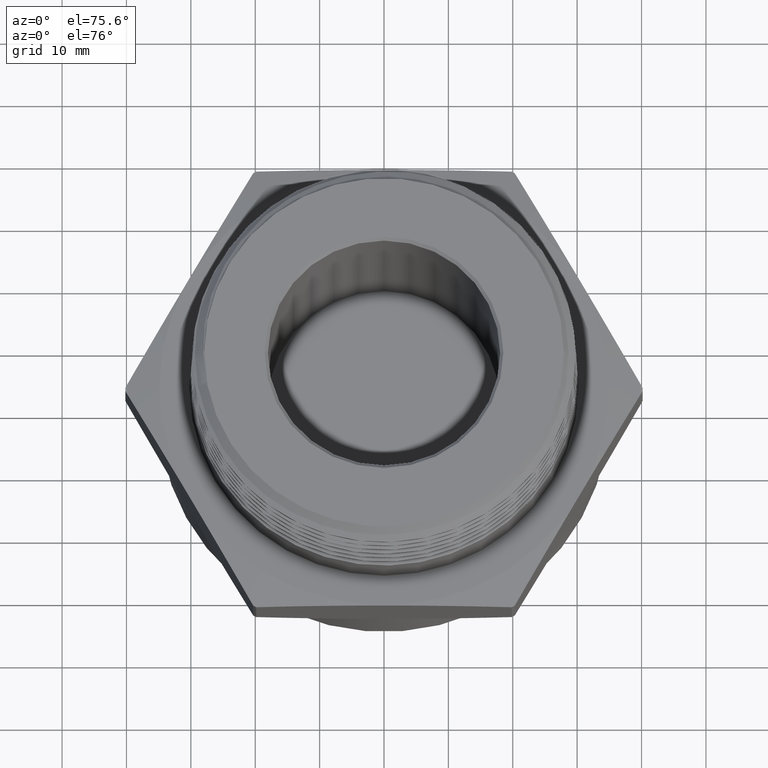
[diagram: clean part render]
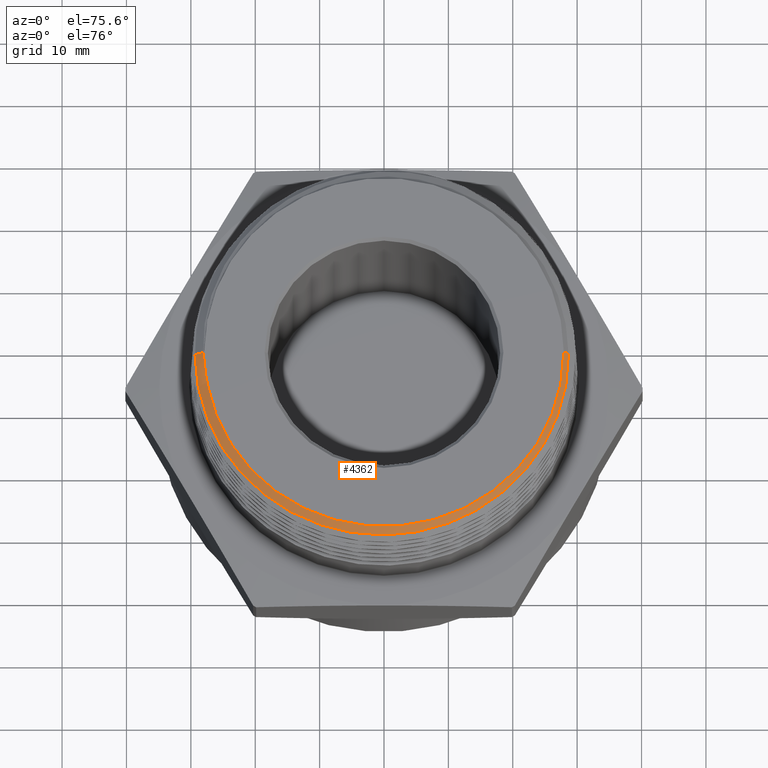
[diagram: same view with one face highlighted and labeled with its STEP entity id]
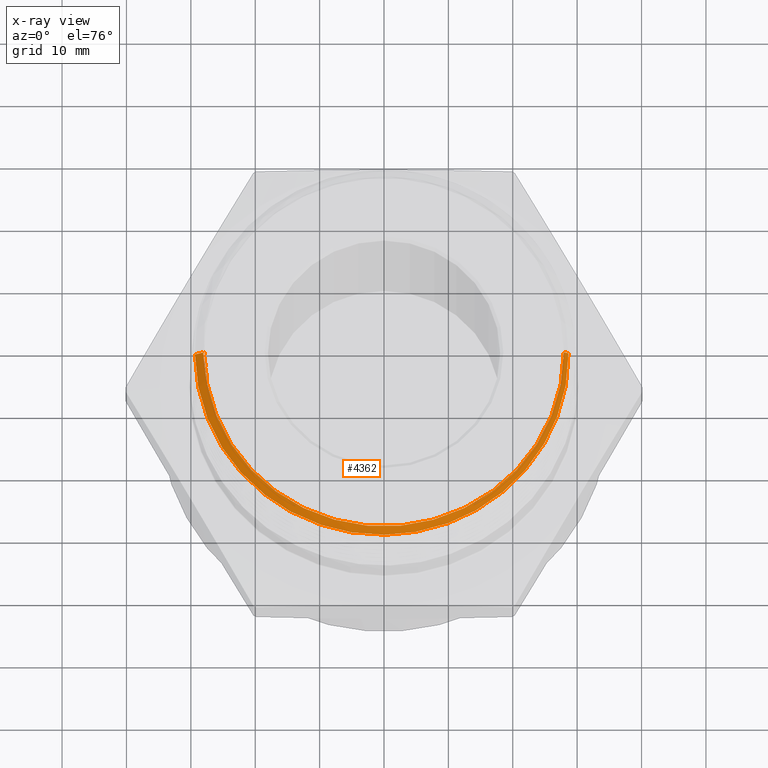
[diagram: x-ray of the same camera — body ghosted, the highlighted face saturated]
A machine part, auxiliary view. The second image highlights one B-rep face of the part: STEP entity #4362.
The next image is the same camera in x-ray: the body ghosted, the highlighted face saturated — about 0% of this face is hidden behind the body in this view.
In plain terms, the highlighted conical surface has half-angle 45 deg.
Its self-contained STEP definition (entity closure, byte-faithful):
#70 = B_SPLINE_CURVE_WITH_KNOTS ( 'NONE', 3,
 ( #3223, #3163, #3225, #3226, #3227, #3228 ),
 .UNSPECIFIED., .F., .F.,
 ( 4, 2, 4 ),
 ( 0.0000000000000000000, 0.002267236822697213500, 0.004534473645394426900 ),
 .UNSPECIFIED. ) ;
#73 = B_SPLINE_CURVE_WITH_KNOTS ( 'NONE', 3,
 ( #3229, #3230, #3235, #3236, #3237, #3238 ),
 .UNSPECIFIED., .F., .F.,
 ( 4, 2, 4 ),
 ( 0.002414601907730428700, 0.004679204686523712200, 0.006943807465316994800 ),
 .UNSPECIFIED. ) ;
#109 = FACE_OUTER_BOUND ( 'NONE', #1946, .T. ) ;
#114 = CONICAL_SURFACE ( 'NONE', #159, 1.193381189221745000, 0.7853981633974533900 ) ;
#159 = AXIS2_PLACEMENT_3D ( 'NONE', #7833, #7834, #7832 ) ;
#596 = CARTESIAN_POINT ( 'NONE',  ( -1.099700000000000100, 0.0000000000000000000, 1.200000000000000000 ) ) ;
#597 = CARTESIAN_POINT ( 'NONE',  ( 1.099700000000000100, 1.381438622983947700E-016, 1.200000000000000000 ) ) ;
#598 = CARTESIAN_POINT ( 'NONE',  ( -1.086377111140544700, -0.1773428476099616900, 1.198943118028106500 ) ) ;
#600 = CARTESIAN_POINT ( 'NONE',  ( 1.128048924917789200, 1.070967773220343500E-015, 1.171651075082210900 ) ) ;
#602 = CARTESIAN_POINT ( 'NONE',  ( -1.100815782494587200, -4.758545883243128000E-013, 1.198884217505412900 ) ) ;
#604 = CARTESIAN_POINT ( 'NONE',  ( -1.105975229220446800, 2.170469800391787400E-015, 1.193724770779554000 ) ) ;
#605 = CARTESIAN_POINT ( 'NONE',  ( -1.156022545099350200, -7.616741192391178700E-013, 1.143677454900650500 ) ) ;
#1107 = EDGE_CURVE ( 'NONE', #1983, #1989, #3294, .T. ) ;
#1109 = EDGE_CURVE ( 'NONE', #1985, #1991, #70, .T. ) ;
#1110 = EDGE_CURVE ( 'NONE', #1984, #1983, #3297, .T. ) ;
#1111 = EDGE_CURVE ( 'NONE', #1989, #1985, #73, .T. ) ;
#1112 = EDGE_CURVE ( 'NONE', #1991, #1992, #3292, .T. ) ;
#1649 = CARTESIAN_POINT ( 'NONE',  ( -1.193381189221745000, 0.0000000000000000000, 1.106318810778256200 ) ) ;
#1946 = EDGE_LOOP ( 'NONE', ( #2121, #2122, #2123, #2124, #2125, #2126, #2127 ) ) ;
#1983 = VERTEX_POINT ( 'NONE', #596 ) ;
#1984 = VERTEX_POINT ( 'NONE', #597 ) ;
#1985 = VERTEX_POINT ( 'NONE', #598 ) ;
#1987 = VERTEX_POINT ( 'NONE', #600 ) ;
#1989 = VERTEX_POINT ( 'NONE', #602 ) ;
#1991 = VERTEX_POINT ( 'NONE', #604 ) ;
#1992 = VERTEX_POINT ( 'NONE', #605 ) ;
#2121 = ORIENTED_EDGE ( 'NONE', *, *, #4227, .F. ) ;
#2122 = ORIENTED_EDGE ( 'NONE', *, *, #1110, .T. ) ;
#2123 = ORIENTED_EDGE ( 'NONE', *, *, #1107, .T. ) ;
#2124 = ORIENTED_EDGE ( 'NONE', *, *, #1111, .T. ) ;
#2125 = ORIENTED_EDGE ( 'NONE', *, *, #1109, .T. ) ;
#2126 = ORIENTED_EDGE ( 'NONE', *, *, #1112, .T. ) ;
#2127 = ORIENTED_EDGE ( 'NONE', *, *, #4222, .T. ) ;
#3014 = LINE ( 'NONE', #4804, #3017 ) ;
#3017 = VECTOR ( 'NONE', #4876, 39.37007874015748100 ) ;
#3162 = DIRECTION ( 'NONE',  ( -0.7071067811865511300, 0.0000000000000000000, -0.7071067811865439100 ) ) ;
#3163 = CARTESIAN_POINT ( 'NONE',  ( -1.092044101637953800, -0.1480651475286378900, 1.198067086201881400 ) ) ;
#3223 = CARTESIAN_POINT ( 'NONE',  ( -1.086377111140544700, -0.1773428476099616900, 1.198943118028106500 ) ) ;
#3225 = CARTESIAN_POINT ( 'NONE',  ( -1.096505697157817100, -0.1186446536988642500, 1.197194913947073700 ) ) ;
#3226 = CARTESIAN_POINT ( 'NONE',  ( -1.103036798239352300, -0.05952028204619910100, 1.195458627261829700 ) ) ;
#3227 = CARTESIAN_POINT ( 'NONE',  ( -1.105107613503385900, -0.02974379452529727500, 1.194592386496614800 ) ) ;
#3228 = CARTESIAN_POINT ( 'NONE',  ( -1.105975229220446800, 2.170469800391787400E-015, 1.193724770779554000 ) ) ;
#3229 = CARTESIAN_POINT ( 'NONE',  ( -1.100815782494587200, -4.758545883243128000E-013, 1.198884217505412900 ) ) ;
#3230 = CARTESIAN_POINT ( 'NONE',  ( -1.100806205085750800, -0.02968471655012536900, 1.198893794914236000 ) ) ;
#3231 = CARTESIAN_POINT ( 'NONE',  ( 0.0000000000000000000, 0.0000000000000000000, 1.200000000000000000 ) ) ;
#3232 = DIRECTION ( 'NONE',  ( -0.0000000000000000000, -0.0000000000000000000, -1.000000000000000000 ) ) ;
#3233 = DIRECTION ( 'NONE',  ( -1.000000000000000000, 0.0000000000000000000, 0.0000000000000000000 ) ) ;
#3235 = CARTESIAN_POINT ( 'NONE',  ( -1.099589375239147500, -0.05941197086798437300, 1.198906587762518000 ) ) ;
#3236 = CARTESIAN_POINT ( 'NONE',  ( -1.094771355935576100, -0.1185604882070934300, 1.198927329942677500 ) ) ;
#3237 = CARTESIAN_POINT ( 'NONE',  ( -1.091172925391183300, -0.1480129665375129700, 1.198935288694480400 ) ) ;
#3238 = CARTESIAN_POINT ( 'NONE',  ( -1.086377111140544700, -0.1773428476099616900, 1.198943118028106500 ) ) ;
#3239 = CARTESIAN_POINT ( 'NONE',  ( -1.193381189221745000, 0.0000000000000000000, 1.106318810778256200 ) ) ;
#3240 = DIRECTION ( 'NONE',  ( -0.7071067811865511300, 0.0000000000000000000, -0.7071067811865439100 ) ) ;
#3292 = LINE ( 'NONE', #3239, #3298 ) ;
#3293 = VECTOR ( 'NONE', #3162, 39.37007874015748100 ) ;
#3294 = LINE ( 'NONE', #1649, #3293 ) ;
#3297 = CIRCLE ( 'NONE', #4240, 1.099700000000000100 ) ;
#3298 = VECTOR ( 'NONE', #3240, 39.37007874015748100 ) ;
#4222 = EDGE_CURVE ( 'NONE', #1992, #1987, #4272, .T. ) ;
#4227 = EDGE_CURVE ( 'NONE', #1984, #1987, #3014, .T. ) ;
#4240 = AXIS2_PLACEMENT_3D ( 'NONE', #3231, #3232, #3233 ) ;
#4272 = B_SPLINE_CURVE_WITH_KNOTS ( 'NONE', 3,
 ( #4742, #4743, #4805, #4806, #4807, #4808, #4809, #4810, #4811, #4812, #4813, #4814, #4815, #4816, #4817, #4818, #4819, #4820, #4821, #4822, #4823, #4824, #4825, #4826, #4827, #4828, #4829, #4830, #4831, #4832, #4833, #4834, #4835, #4836, #4837, #4838, #4839, #4840, #4841, #4842, #4843, #4844, #4845, #4846, #4847, #4848, #4849, #4850, #4851, #4852, #4853, #4854, #4855, #4856, #4857, #4858, #4859, #4860, #4861, #4862, #4863, #4864, #4865, #4866, #4867, #4868 ),
 .UNSPECIFIED., .F., .F.,
 ( 4, 2, 2, 2, 2, 2, 2, 2, 2, 2, 2, 2, 2, 2, 2, 2, 2, 2, 2, 2, 2, 2, 2, 2, 2, 2, 2, 2, 2, 2, 2, 2, 4 ),
 ( 0.04868734609228440900, 0.05155479554165297300, 0.05442224499102153700, 0.05728969444039010200, 0.05872341916507438400, 0.06015714388975866600, 0.06589204278849578000, 0.06875949223786434500, 0.07019321696254862700, 0.07162694168723289500, 0.07736184058596998200, 0.07879556531065425000, 0.08022929003533851900, 0.08309673948470705500, 0.08883163838344412800, 0.09026536310812838200, 0.09169908783281266500, 0.09456653728218118700, 0.09743398673154971000, 0.09886771145623399200, 0.1003014361809182600, 0.1060363350796553200, 0.1089037845290238600, 0.1103375092537081400, 0.1117712339783924100, 0.1175061328771294700, 0.1203735823264980000, 0.1232410317758665200, 0.1289759306746035800, 0.1347108295733406300, 0.1375782790227091700, 0.1390120037473934200, 0.1404457284720776700 ),
 .UNSPECIFIED. ) ;
#4362 = ADVANCED_FACE ( 'NONE', ( #109 ), #114, .T. ) ;
#4742 = CARTESIAN_POINT ( 'NONE',  ( -1.156022545099350200, -7.616741192391178700E-013, 1.143677454900650500 ) ) ;
#4743 = CARTESIAN_POINT ( 'NONE',  ( -1.155732476112317100, -0.03765900173206455900, 1.143967523887660100 ) ) ;
#4804 = CARTESIAN_POINT ( 'NONE',  ( 1.193381189221745000, 1.461470453543071700E-016, 1.106318810778256200 ) ) ;
#4805 = CARTESIAN_POINT ( 'NONE',  ( -1.153584839232549400, -0.07538326107923154500, 1.144259948200256700 ) ) ;
#4806 = CARTESIAN_POINT ( 'NONE',  ( -1.145720699123083900, -0.1497748199283402100, 1.144836582522191100 ) ) ;
#4807 = CARTESIAN_POINT ( 'NONE',  ( -1.140008385819446500, -0.1865861414300793200, 1.145121930871892300 ) ) ;
#4808 = CARTESIAN_POINT ( 'NONE',  ( -1.125075326211527400, -0.2594510406445708100, 1.145695519098522100 ) ) ;
#4809 = CARTESIAN_POINT ( 'NONE',  ( -1.115854318484983000, -0.2955045600757868500, 1.145983988746649200 ) ) ;
#4810 = CARTESIAN_POINT ( 'NONE',  ( -1.099364826409955600, -0.3490107947202432700, 1.146416312541688400 ) ) ;
#4811 = CARTESIAN_POINT ( 'NONE',  ( -1.093424474360381100, -0.3667503461551428500, 1.146560450142993600 ) ) ;
#4812 = CARTESIAN_POINT ( 'NONE',  ( -1.080640879387540400, -0.4020344445437818400, 1.146849476856461400 ) ) ;
#4813 = CARTESIAN_POINT ( 'NONE',  ( -1.073776745271938700, -0.4196270458305165200, 1.146994769250628200 ) ) ;
#4814 = CARTESIAN_POINT ( 'NONE',  ( -1.037436774273010800, -0.5064032880680314800, 1.147721165878635500 ) ) ;
#4815 = CARTESIAN_POINT ( 'NONE',  ( -1.002066694281451300, -0.5719574629705911400, 1.148295106368112600 ) ) ;
#4816 = CARTESIAN_POINT ( 'NONE',  ( -0.9398631380632643800, -0.6646717845928646900, 1.149158233272309100 ) ) ;
#4817 = CARTESIAN_POINT ( 'NONE',  ( -0.9175910766081646400, -0.6946325206030987700, 1.149448517938419500 ) ) ;
#4818 = CARTESIAN_POINT ( 'NONE',  ( -0.8818183673824194800, -0.7381217991069821700, 1.149884749305979800 ) ) ;
#4819 = CARTESIAN_POINT ( 'NONE',  ( -0.8694631503082798100, -0.7524140373079308800, 1.150030784207002300 ) ) ;
#4820 = CARTESIAN_POINT ( 'NONE',  ( -0.8441693956953260100, -0.7802582574266876400, 1.150321398593478400 ) ) ;
#4821 = CARTESIAN_POINT ( 'NONE',  ( -0.8312284866543845400, -0.7938181454639744400, 1.150466040426284300 ) ) ;
#4822 = CARTESIAN_POINT ( 'NONE',  ( -0.7650788531619567800, -0.8598373159051496700, 1.151189555432475800 ) ) ;
#4823 = CARTESIAN_POINT ( 'NONE',  ( -0.7075784400427482800, -0.9070095293555395800, 1.151764743334590600 ) ) ;
#4824 = CARTESIAN_POINT ( 'NONE',  ( -0.6299888595280716000, -0.9589353380603244900, 1.152488463553202400 ) ) ;
#4825 = CARTESIAN_POINT ( 'NONE',  ( -0.6141822792018955000, -0.9689648707375240200, 1.152634120106857700 ) ) ;
#4826 = CARTESIAN_POINT ( 'NONE',  ( -0.5819822340148386200, -0.9883009142330743100, 1.152926544696451400 ) ) ;
#4827 = CARTESIAN_POINT ( 'NONE',  ( -0.5655451191486423600, -0.9976292404966831100, 1.153073649091765700 ) ) ;
#4828 = CARTESIAN_POINT ( 'NONE',  ( -0.5158245019464864400, -1.024248867222690200, 1.153511935127362200 ) ) ;
#4829 = CARTESIAN_POINT ( 'NONE',  ( -0.4820495801582940200, -1.040240430318184000, 1.153800519382371000 ) ) ;
#4830 = CARTESIAN_POINT ( 'NONE',  ( -0.3788915241049979900, -1.083090701929977400, 1.154667715753220600 ) ) ;
#4831 = CARTESIAN_POINT ( 'NONE',  ( -0.3076933121897609300, -1.104875954972599900, 1.155245467548408700 ) ) ;
#4832 = CARTESIAN_POINT ( 'NONE',  ( -0.2155737740377110800, -1.123381399379845800, 1.155975949610938700 ) ) ;
#4833 = CARTESIAN_POINT ( 'NONE',  ( -0.1969550235505406200, -1.126645012103290700, 1.156123456666903400 ) ) ;
#4834 = CARTESIAN_POINT ( 'NONE',  ( -0.1597951184867844600, -1.132216736226041400, 1.156416892652913700 ) ) ;
#4835 = CARTESIAN_POINT ( 'NONE',  ( -0.1412126949855879400, -1.134535049762248800, 1.156563099696661800 ) ) ;
#4836 = CARTESIAN_POINT ( 'NONE',  ( -0.08545814029183142200, -1.140112162738927200, 1.156999903189210600 ) ) ;
#4837 = CARTESIAN_POINT ( 'NONE',  ( -0.04827874102830333900, -1.141996760524456500, 1.157288297448059400 ) ) ;
#4838 = CARTESIAN_POINT ( 'NONE',  ( 0.02609917198346299900, -1.142139833789541900, 1.157867426042234100 ) ) ;
#4839 = CARTESIAN_POINT ( 'NONE',  ( 0.06329768296724649900, -1.140397322790040800, 1.158159177581243600 ) ) ;
#4840 = CARTESIAN_POINT ( 'NONE',  ( 0.1191100115549939000, -1.135023456407031200, 1.158596962963033700 ) ) ;
#4841 = CARTESIAN_POINT ( 'NONE',  ( 0.1377165522325831700, -1.132771266481994000, 1.158742986337711700 ) ) ;
#4842 = CARTESIAN_POINT ( 'NONE',  ( 0.1749345861688635700, -1.127327066544066400, 1.159035833603931700 ) ) ;
#4843 = CARTESIAN_POINT ( 'NONE',  ( 0.1935585197168848400, -1.124129488632119100, 1.159182761490374200 ) ) ;
#4844 = CARTESIAN_POINT ( 'NONE',  ( 0.2856529516099198300, -1.105961873391276200, 1.159914804761971800 ) ) ;
#4845 = CARTESIAN_POINT ( 'NONE',  ( 0.3569030055298271800, -1.084416281480089100, 1.160495050521567700 ) ) ;
#4846 = CARTESIAN_POINT ( 'NONE',  ( 0.4602216756420145500, -1.041817434594534600, 1.161367917406749100 ) ) ;
#4847 = CARTESIAN_POINT ( 'NONE',  ( 0.4940633866034018800, -1.025889697362455800, 1.161661848249745800 ) ) ;
#4848 = CARTESIAN_POINT ( 'NONE',  ( 0.5439011848591069900, -0.9993248965875705100, 1.162104122169666000 ) ) ;
#4849 = CARTESIAN_POINT ( 'NONE',  ( 0.5603326090589693100, -0.9900343603768292400, 1.162251624047482700 ) ) ;
#4850 = CARTESIAN_POINT ( 'NONE',  ( 0.5925243067505676600, -0.9707673259660210000, 1.162544603535256000 ) ) ;
#4851 = CARTESIAN_POINT ( 'NONE',  ( 0.6083292104349088400, -0.9607675901272974000, 1.162690476933398300 ) ) ;
#4852 = CARTESIAN_POINT ( 'NONE',  ( 0.6859197802185430500, -0.9089640156873389800, 1.163420383313242200 ) ) ;
#4853 = CARTESIAN_POINT ( 'NONE',  ( 0.7434476384417566500, -0.8618008686723851500, 1.164001840841077100 ) ) ;
#4854 = CARTESIAN_POINT ( 'NONE',  ( 0.8228515772375364400, -0.7823865557917415400, 1.164881848956436800 ) ) ;
#4855 = CARTESIAN_POINT ( 'NONE',  ( 0.8482733783308008500, -0.7543021652485608600, 1.165180463770803900 ) ) ;
#4856 = CARTESIAN_POINT ( 'NONE',  ( 0.8957575758974061200, -0.6962917450495226300, 1.165769258638782900 ) ) ;
#4857 = CARTESIAN_POINT ( 'NONE',  ( 0.9179195061678435700, -0.6662932916886543700, 1.166060333538892800 ) ) ;
#4858 = CARTESIAN_POINT ( 'NONE',  ( 0.9797589916207899400, -0.5733775314604113700, 1.166936490996132200 ) ) ;
#4859 = CARTESIAN_POINT ( 'NONE',  ( 1.014865097652471800, -0.5075100745600150700, 1.167521278837973400 ) ) ;
#4860 = CARTESIAN_POINT ( 'NONE',  ( 1.072124175134004000, -0.3679437908166154900, 1.168707562117996100 ) ) ;
#4861 = CARTESIAN_POINT ( 'NONE',  ( 1.093368728309764200, -0.2964872291065583900, 1.169292297975345700 ) ) ;
#4862 = CARTESIAN_POINT ( 'NONE',  ( 1.114581296320492600, -0.1868882739845336100, 1.170171725456904600 ) ) ;
#4863 = CARTESIAN_POINT ( 'NONE',  ( 1.119861132994050400, -0.1499494839214051700, 1.170467215691361400 ) ) ;
#4864 = CARTESIAN_POINT ( 'NONE',  ( 1.125031369705277800, -0.09391829508237810300, 1.170911070203237300 ) ) ;
#4865 = CARTESIAN_POINT ( 'NONE',  ( 1.126297208829400800, -0.07508840577743210200, 1.171059607196741600 ) ) ;
#4866 = CARTESIAN_POINT ( 'NONE',  ( 1.127879177832340500, -0.03746228037601827300, 1.171355935803833700 ) ) ;
#4867 = CARTESIAN_POINT ( 'NONE',  ( 1.128196566643500300, -0.01870416178381285900, 1.171503433356500900 ) ) ;
#4868 = CARTESIAN_POINT ( 'NONE',  ( 1.128048924917789200, 1.070967773220343500E-015, 1.171651075082210900 ) ) ;
#4876 = DIRECTION ( 'NONE',  ( 0.7071067811865511300, 8.659560562354977200E-017, -0.7071067811865439100 ) ) ;
#7832 = DIRECTION ( 'NONE',  ( -1.000000000000000000, 0.0000000000000000000, 0.0000000000000000000 ) ) ;
#7833 = CARTESIAN_POINT ( 'NONE',  ( 0.0000000000000000000, 0.0000000000000000000, 1.106318810778256200 ) ) ;
#7834 = DIRECTION ( 'NONE',  ( -0.0000000000000000000, -0.0000000000000000000, -1.000000000000000000 ) ) ;